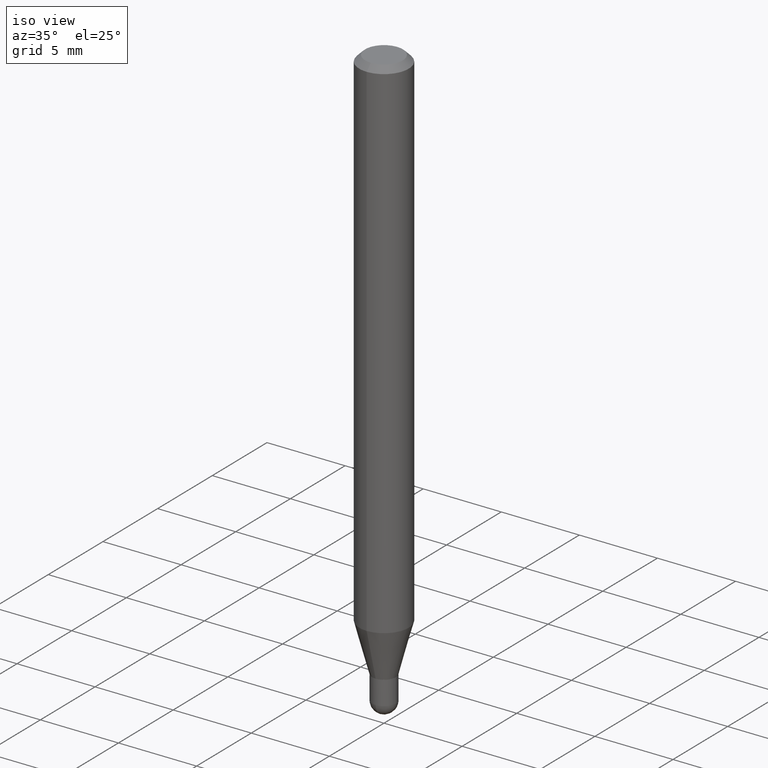
[diagram: clean part render]
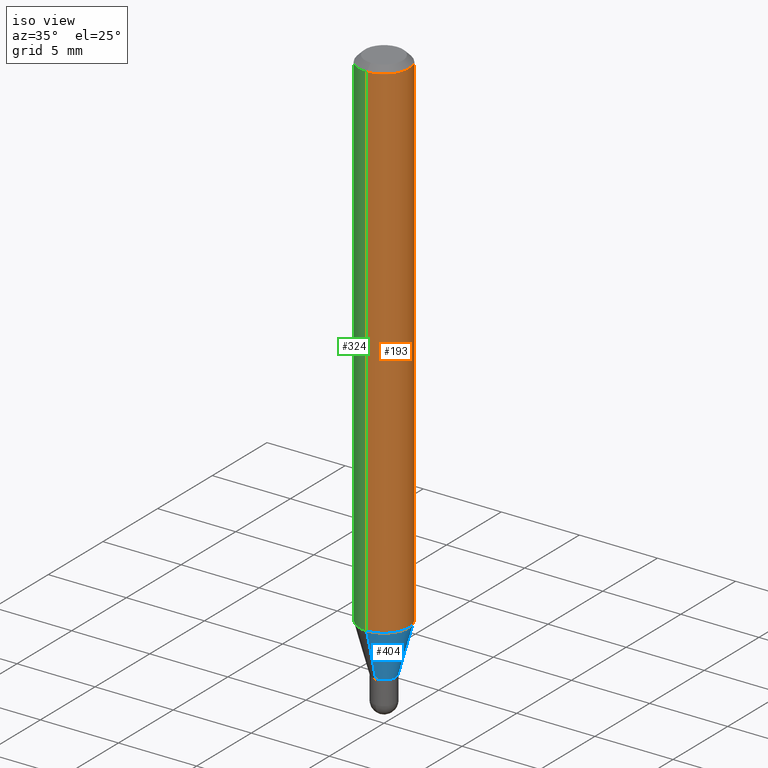
[diagram: same view with three faces highlighted in distinct colors, each labeled with its STEP entity id]
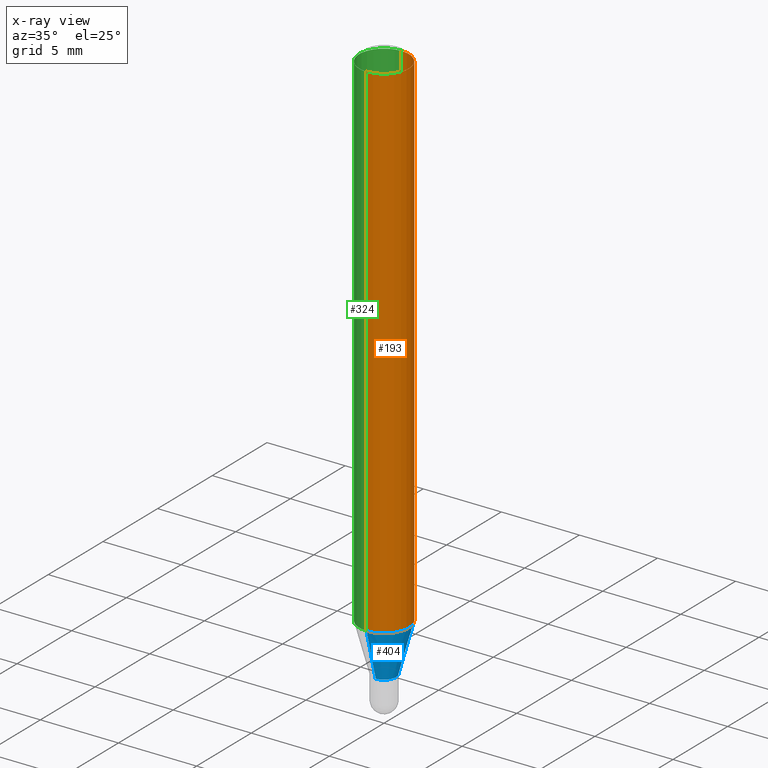
[diagram: x-ray of the same camera — body ghosted, the three highlighted faces saturated]
A machine part, iso view with three faces highlighted in distinct colors.
The next image is the same camera in x-ray (body ghosted, the three faces saturated) — at least one of them is partly hidden behind the body in this view.
Their STEP definitions:

[orange] entity #193 — the highlighted cylindrical surface (edge-blend (fillet) strip) has radius 1.5875 mm, axis along (-0, 0, 1).
#1 = FACE_OUTER_BOUND ( 'NONE', #461, .T. ) ;
#2 = ORIENTED_EDGE ( 'NONE', *, *, #482, .F. ) ;
#18 = AXIS2_PLACEMENT_3D ( 'NONE', #476, #430, #228 ) ;
#33 = ORIENTED_EDGE ( 'NONE', *, *, #60, .T. ) ;
#41 = CARTESIAN_POINT ( 'NONE',  ( 3.151486817839062472E-29, -4.499514396423286134E-15, -1.288708348754016741 ) ) ;
#60 = EDGE_CURVE ( 'NONE', #212, #244, #227, .T. ) ;
#67 = DIRECTION ( 'NONE',  ( -2.445461628991591881E-29, 3.491491616992802242E-15, 1.000000000000000000 ) ) ;
#71 = CARTESIAN_POINT ( 'NONE',  ( 4.440892098500942692E-16, 0.06249999999999995143, -0.01500000000000022669 ) ) ;
#74 = AXIS2_PLACEMENT_3D ( 'NONE', #220, #67, #314 ) ;
#77 = LINE ( 'NONE', #396, #182 ) ;
#86 = CYLINDRICAL_SURFACE ( 'NONE', #18, 0.06250000000000000000 ) ;
#97 = AXIS2_PLACEMENT_3D ( 'NONE', #41, #202, #322 ) ;
#127 = CARTESIAN_POINT ( 'NONE',  ( -4.364351673553602629E-16, -0.06250000000000452416, -1.288708348754016519 ) ) ;
#131 = DIRECTION ( 'NONE',  ( -2.445461628991591601E-29, 3.491491616992802242E-15, 1.000000000000000000 ) ) ;
#138 = EDGE_CURVE ( 'NONE', #212, #313, #77, .T. ) ;
#182 = VECTOR ( 'NONE', #131, 39.37007874015748143 ) ;
#193 = ADVANCED_FACE ( 'NONE', ( #1 ), #86, .T. ) ;
#202 = DIRECTION ( 'NONE',  ( -2.445461628991591881E-29, 3.491491616992802242E-15, 1.000000000000000000 ) ) ;
#212 = VERTEX_POINT ( 'NONE', #127 ) ;
#220 = CARTESIAN_POINT ( 'NONE',  ( 3.668192443487390344E-31, -5.237237425489206174E-17, -0.01500000000000000812 ) ) ;
#227 = CIRCLE ( 'NONE', #97, 0.06250000000000000000 ) ;
#228 = DIRECTION ( 'NONE',  ( -6.982962677686265922E-15, -1.000000000000000000, 3.491491616992801848E-15 ) ) ;
#232 = ORIENTED_EDGE ( 'NONE', *, *, #138, .F. ) ;
#244 = VERTEX_POINT ( 'NONE', #374 ) ;
#274 = CIRCLE ( 'NONE', #74, 0.06250000000000000000 ) ;
#291 = CARTESIAN_POINT ( 'NONE',  ( -4.364351673553912750E-16, -0.06250000000000005551, -0.01499999999999979128 ) ) ;
#299 = ORIENTED_EDGE ( 'NONE', *, *, #485, .T. ) ;
#304 = DIRECTION ( 'NONE',  ( -2.445461628991591601E-29, 3.491491616992802242E-15, 1.000000000000000000 ) ) ;
#313 = VERTEX_POINT ( 'NONE', #291 ) ;
#314 = DIRECTION ( 'NONE',  ( -6.982962677686265922E-15, -1.000000000000000000, 3.483106191921935554E-15 ) ) ;
#322 = DIRECTION ( 'NONE',  ( -6.982962677686265922E-15, -1.000000000000000000, 4.370956789862821150E-15 ) ) ;
#374 = CARTESIAN_POINT ( 'NONE',  ( 4.440892098500938748E-16, 0.06249999999999547584, -1.288708348754017186 ) ) ;
#379 = LINE ( 'NONE', #503, #474 ) ;
#396 = CARTESIAN_POINT ( 'NONE',  ( -4.364351673553916201E-16, -0.06250000000000000000, 2.182182260620501155E-16 ) ) ;
#420 = VERTEX_POINT ( 'NONE', #71 ) ;
#430 = DIRECTION ( 'NONE',  ( -2.445461628991591881E-29, 3.491491616992802242E-15, 1.000000000000000000 ) ) ;
#461 = EDGE_LOOP ( 'NONE', ( #33, #299, #2, #232 ) ) ;
#474 = VECTOR ( 'NONE', #304, 39.37007874015748143 ) ;
#476 = CARTESIAN_POINT ( 'NONE',  ( 0.000000000000000000, 0.000000000000000000, 0.000000000000000000 ) ) ;
#482 = EDGE_CURVE ( 'NONE', #313, #420, #274, .T. ) ;
#485 = EDGE_CURVE ( 'NONE', #244, #420, #379, .T. ) ;
#503 = CARTESIAN_POINT ( 'NONE',  ( 4.440892098500625669E-16, 0.06250000000000000000, -2.182182260620501155E-16 ) ) ;

[blue] entity #404 — the highlighted conical surface has half-angle 15 deg.
#6 = VECTOR ( 'NONE', #431, 39.37007874015747433 ) ;
#11 = VERTEX_POINT ( 'NONE', #384 ) ;
#30 = DIRECTION ( 'NONE',  ( -2.445461628991591881E-29, 3.491491616992802242E-15, 1.000000000000000000 ) ) ;
#36 = ORIENTED_EDGE ( 'NONE', *, *, #60, .F. ) ;
#37 = LINE ( 'NONE', #233, #456 ) ;
#38 = DIRECTION ( 'NONE',  ( -6.982962677686265922E-15, -1.000000000000000000, 0.000000000000000000 ) ) ;
#39 = ORIENTED_EDGE ( 'NONE', *, *, #92, .F. ) ;
#41 = CARTESIAN_POINT ( 'NONE',  ( 3.151486817839062472E-29, -4.499514396423286134E-15, -1.288708348754016741 ) ) ;
#60 = EDGE_CURVE ( 'NONE', #212, #244, #227, .T. ) ;
#68 = VERTEX_POINT ( 'NONE', #82 ) ;
#82 = CARTESIAN_POINT ( 'NONE',  ( -2.094888803305548889E-16, -0.03000000000000512326, -1.410000000000000586 ) ) ;
#92 = EDGE_CURVE ( 'NONE', #68, #212, #37, .T. ) ;
#97 = AXIS2_PLACEMENT_3D ( 'NONE', #41, #202, #322 ) ;
#98 = AXIS2_PLACEMENT_3D ( 'NONE', #146, #470, #38 ) ;
#108 = CONICAL_SURFACE ( 'NONE', #473, 0.03000000000000020012, 0.2617993877991577345 ) ;
#127 = CARTESIAN_POINT ( 'NONE',  ( -4.364351673553602629E-16, -0.06250000000000452416, -1.288708348754016519 ) ) ;
#146 = CARTESIAN_POINT ( 'NONE',  ( 3.448100896878145452E-29, -4.923003179959853236E-15, -1.410000000000000586 ) ) ;
#149 = EDGE_LOOP ( 'NONE', ( #185, #248, #36, #39 ) ) ;
#185 = ORIENTED_EDGE ( 'NONE', *, *, #421, .T. ) ;
#202 = DIRECTION ( 'NONE',  ( -2.445461628991591881E-29, 3.491491616992802242E-15, 1.000000000000000000 ) ) ;
#212 = VERTEX_POINT ( 'NONE', #127 ) ;
#227 = CIRCLE ( 'NONE', #97, 0.06250000000000000000 ) ;
#233 = CARTESIAN_POINT ( 'NONE',  ( -2.094888803305548889E-16, -0.03000000000000512326, -1.410000000000000586 ) ) ;
#234 = LINE ( 'NONE', #466, #6 ) ;
#244 = VERTEX_POINT ( 'NONE', #374 ) ;
#248 = ORIENTED_EDGE ( 'NONE', *, *, #452, .T. ) ;
#322 = DIRECTION ( 'NONE',  ( -6.982962677686265922E-15, -1.000000000000000000, 4.370956789862821150E-15 ) ) ;
#346 = CIRCLE ( 'NONE', #98, 0.03000000000000020012 ) ;
#374 = CARTESIAN_POINT ( 'NONE',  ( 4.440892098500938748E-16, 0.06249999999999547584, -1.288708348754017186 ) ) ;
#384 = CARTESIAN_POINT ( 'NONE',  ( 3.286260152890800558E-16, 0.02999999999999528044, -1.410000000000000586 ) ) ;
#404 = ADVANCED_FACE ( 'NONE', ( #502 ), #108, .T. ) ;
#419 = DIRECTION ( 'NONE',  ( -6.982962677686265922E-15, -1.000000000000000000, 0.000000000000000000 ) ) ;
#421 = EDGE_CURVE ( 'NONE', #68, #11, #346, .T. ) ;
#431 = DIRECTION ( 'NONE',  ( 1.839019923739651986E-15, 0.2588190451025322303, 0.9659258262890653146 ) ) ;
#452 = EDGE_CURVE ( 'NONE', #11, #244, #234, .T. ) ;
#456 = VECTOR ( 'NONE', #484, 39.37007874015748854 ) ;
#466 = CARTESIAN_POINT ( 'NONE',  ( 2.131628207280659410E-16, 0.02999999999999528044, -1.410000000000000586 ) ) ;
#470 = DIRECTION ( 'NONE',  ( -2.445461628991591881E-29, 3.491491616992802242E-15, 1.000000000000000000 ) ) ;
#473 = AXIS2_PLACEMENT_3D ( 'NONE', #479, #30, #419 ) ;
#479 = CARTESIAN_POINT ( 'NONE',  ( 3.448100896878145452E-29, -4.923003179959853236E-15, -1.410000000000000586 ) ) ;
#484 = DIRECTION ( 'NONE',  ( -1.807323732225380626E-15, -0.2588190451025254024, 0.9659258262890669799 ) ) ;
#502 = FACE_OUTER_BOUND ( 'NONE', #149, .T. ) ;

[green] entity #324 — the highlighted cylindrical surface (edge-blend (fillet) strip) has radius 1.5875 mm, axis along (-0, 0, 1).
#26 = CYLINDRICAL_SURFACE ( 'NONE', #457, 0.06250000000000000000 ) ;
#28 = ORIENTED_EDGE ( 'NONE', *, *, #226, .T. ) ;
#59 = CARTESIAN_POINT ( 'NONE',  ( 0.000000000000000000, 0.000000000000000000, 0.000000000000000000 ) ) ;
#71 = CARTESIAN_POINT ( 'NONE',  ( 4.440892098500942692E-16, 0.06249999999999995143, -0.01500000000000022669 ) ) ;
#77 = LINE ( 'NONE', #396, #182 ) ;
#93 = DIRECTION ( 'NONE',  ( -2.445461628991591881E-29, 3.491491616992802242E-15, 1.000000000000000000 ) ) ;
#114 = ORIENTED_EDGE ( 'NONE', *, *, #485, .F. ) ;
#127 = CARTESIAN_POINT ( 'NONE',  ( -4.364351673553602629E-16, -0.06250000000000452416, -1.288708348754016519 ) ) ;
#131 = DIRECTION ( 'NONE',  ( -2.445461628991591601E-29, 3.491491616992802242E-15, 1.000000000000000000 ) ) ;
#138 = EDGE_CURVE ( 'NONE', #212, #313, #77, .T. ) ;
#152 = CIRCLE ( 'NONE', #365, 0.06250000000000000000 ) ;
#170 = AXIS2_PLACEMENT_3D ( 'NONE', #493, #173, #175 ) ;
#172 = EDGE_CURVE ( 'NONE', #420, #313, #152, .T. ) ;
#173 = DIRECTION ( 'NONE',  ( -2.445461628991591881E-29, 3.491491616992802242E-15, 1.000000000000000000 ) ) ;
#175 = DIRECTION ( 'NONE',  ( -6.982962677686265922E-15, -1.000000000000000000, 4.370956789862821150E-15 ) ) ;
#182 = VECTOR ( 'NONE', #131, 39.37007874015748143 ) ;
#194 = DIRECTION ( 'NONE',  ( -2.445461628991591881E-29, 3.491491616992802242E-15, 1.000000000000000000 ) ) ;
#196 = ORIENTED_EDGE ( 'NONE', *, *, #172, .F. ) ;
#206 = DIRECTION ( 'NONE',  ( -6.982962677686265922E-15, -1.000000000000000000, 3.483106191921935554E-15 ) ) ;
#212 = VERTEX_POINT ( 'NONE', #127 ) ;
#226 = EDGE_CURVE ( 'NONE', #244, #212, #433, .T. ) ;
#244 = VERTEX_POINT ( 'NONE', #374 ) ;
#280 = EDGE_LOOP ( 'NONE', ( #114, #28, #475, #196 ) ) ;
#291 = CARTESIAN_POINT ( 'NONE',  ( -4.364351673553912750E-16, -0.06250000000000005551, -0.01499999999999979128 ) ) ;
#304 = DIRECTION ( 'NONE',  ( -2.445461628991591601E-29, 3.491491616992802242E-15, 1.000000000000000000 ) ) ;
#313 = VERTEX_POINT ( 'NONE', #291 ) ;
#324 = ADVANCED_FACE ( 'NONE', ( #451 ), #26, .T. ) ;
#361 = CARTESIAN_POINT ( 'NONE',  ( 3.668192443487390344E-31, -5.237237425489206174E-17, -0.01500000000000000812 ) ) ;
#365 = AXIS2_PLACEMENT_3D ( 'NONE', #361, #194, #206 ) ;
#374 = CARTESIAN_POINT ( 'NONE',  ( 4.440892098500938748E-16, 0.06249999999999547584, -1.288708348754017186 ) ) ;
#376 = DIRECTION ( 'NONE',  ( -6.982962677686265922E-15, -1.000000000000000000, 3.491491616992801848E-15 ) ) ;
#379 = LINE ( 'NONE', #503, #474 ) ;
#396 = CARTESIAN_POINT ( 'NONE',  ( -4.364351673553916201E-16, -0.06250000000000000000, 2.182182260620501155E-16 ) ) ;
#420 = VERTEX_POINT ( 'NONE', #71 ) ;
#433 = CIRCLE ( 'NONE', #170, 0.06250000000000000000 ) ;
#451 = FACE_OUTER_BOUND ( 'NONE', #280, .T. ) ;
#457 = AXIS2_PLACEMENT_3D ( 'NONE', #59, #93, #376 ) ;
#474 = VECTOR ( 'NONE', #304, 39.37007874015748143 ) ;
#475 = ORIENTED_EDGE ( 'NONE', *, *, #138, .T. ) ;
#485 = EDGE_CURVE ( 'NONE', #244, #420, #379, .T. ) ;
#493 = CARTESIAN_POINT ( 'NONE',  ( 3.151486817839062472E-29, -4.499514396423286134E-15, -1.288708348754016741 ) ) ;
#503 = CARTESIAN_POINT ( 'NONE',  ( 4.440892098500625669E-16, 0.06250000000000000000, -2.182182260620501155E-16 ) ) ;